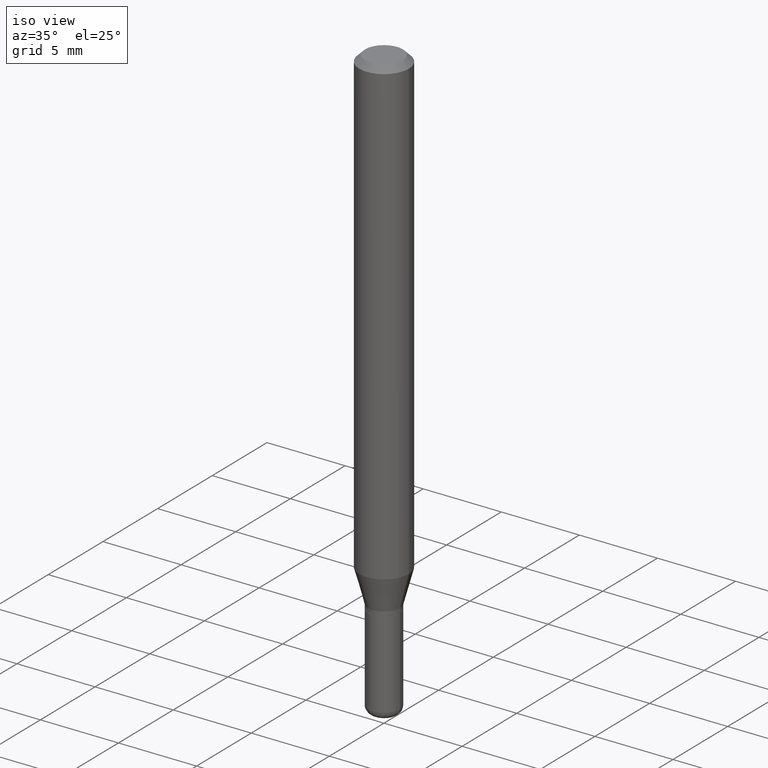
[diagram: clean part render]
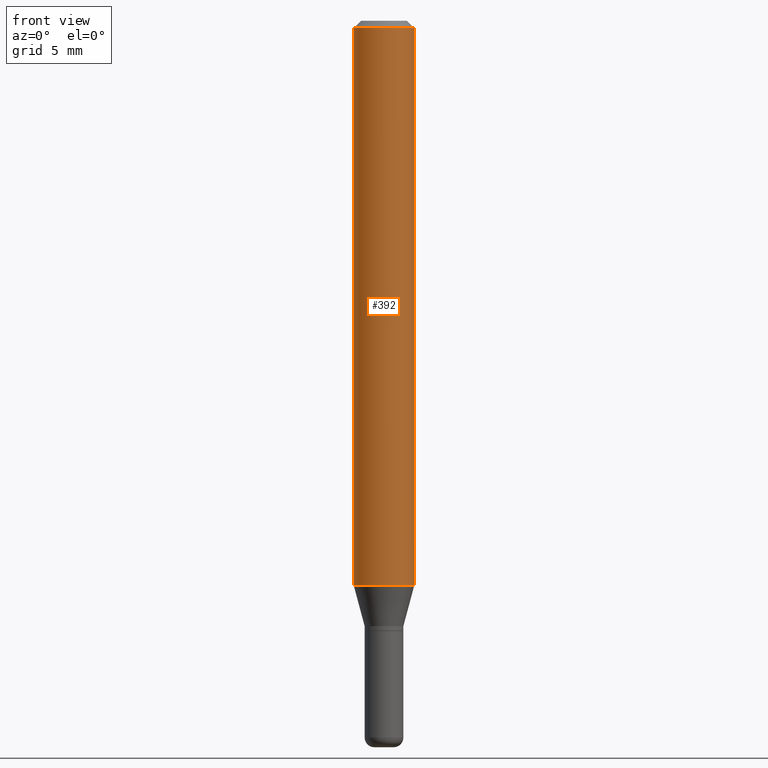
[diagram: tour spotlight — one face highlighted and labeled with its STEP entity id]
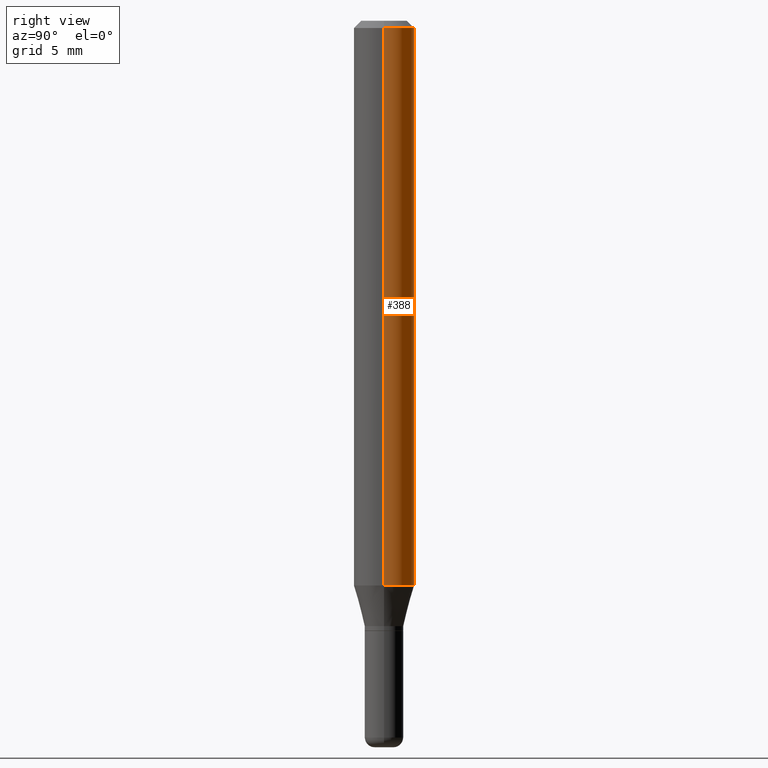
[diagram: tour spotlight — one face highlighted and labeled with its STEP entity id]
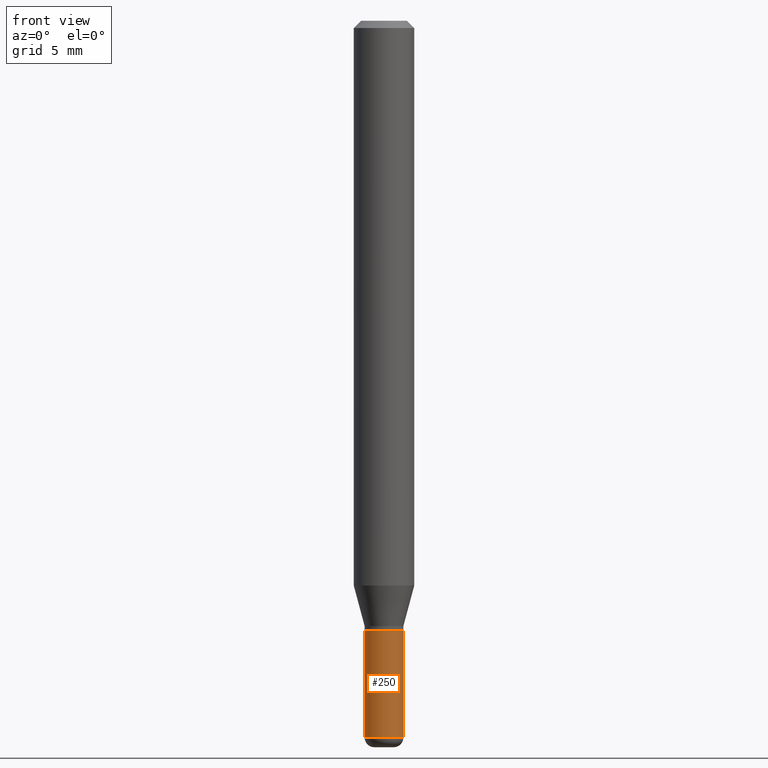
[diagram: tour spotlight — one face highlighted and labeled with its STEP entity id]
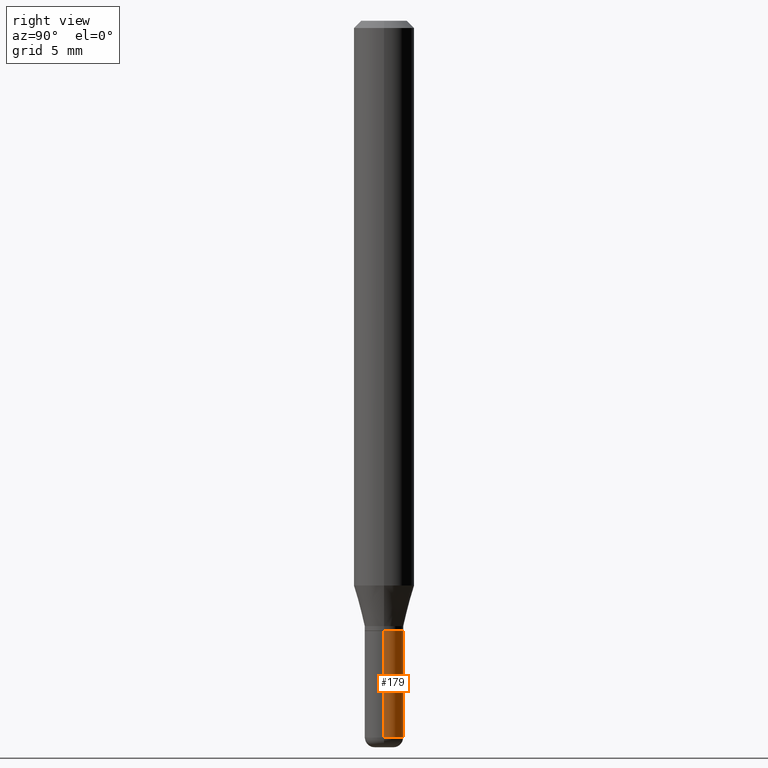
[diagram: tour spotlight — one face highlighted and labeled with its STEP entity id]
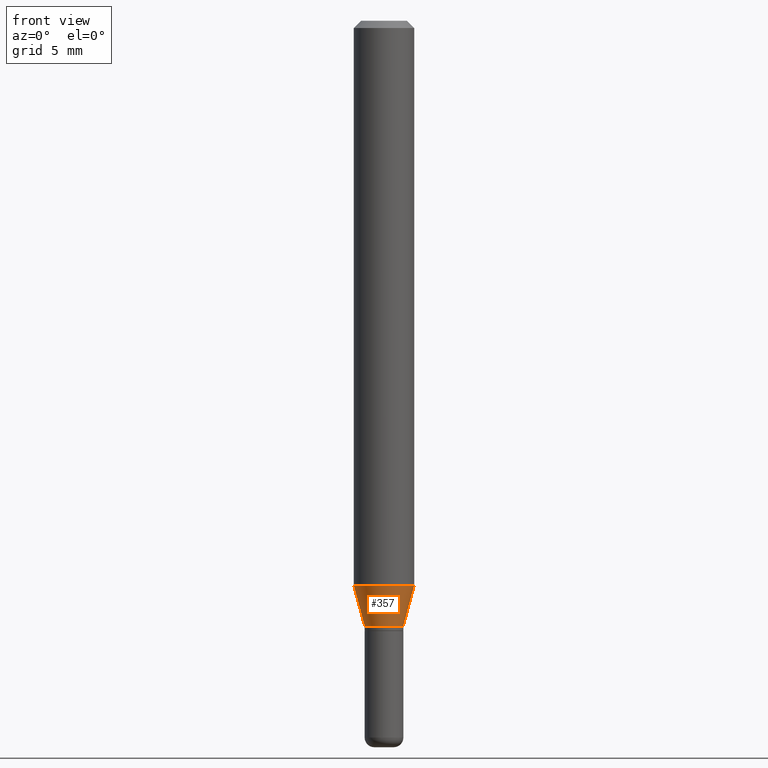
[diagram: tour spotlight — one face highlighted and labeled with its STEP entity id]
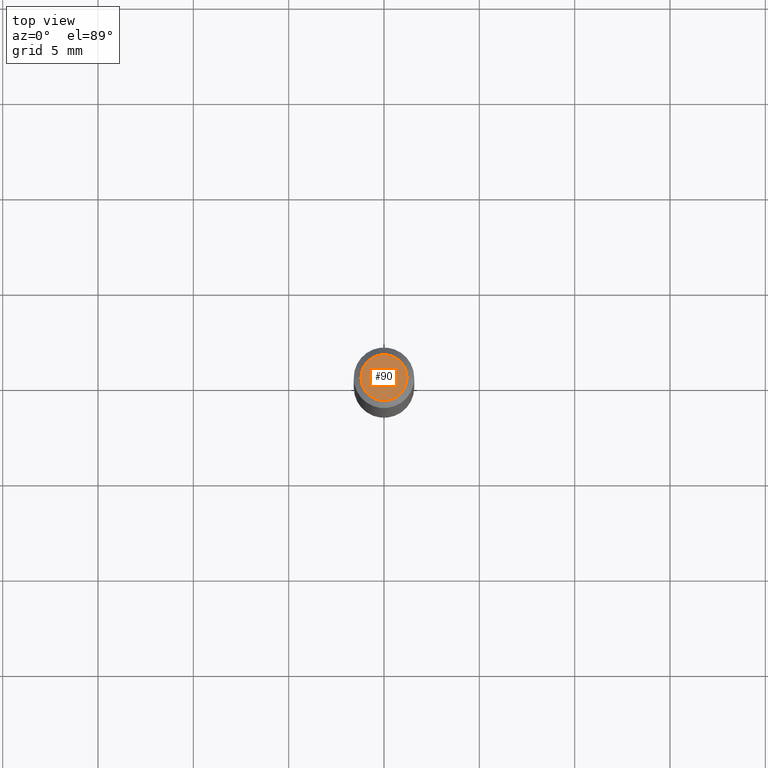
[diagram: tour spotlight — one face highlighted and labeled with its STEP entity id]
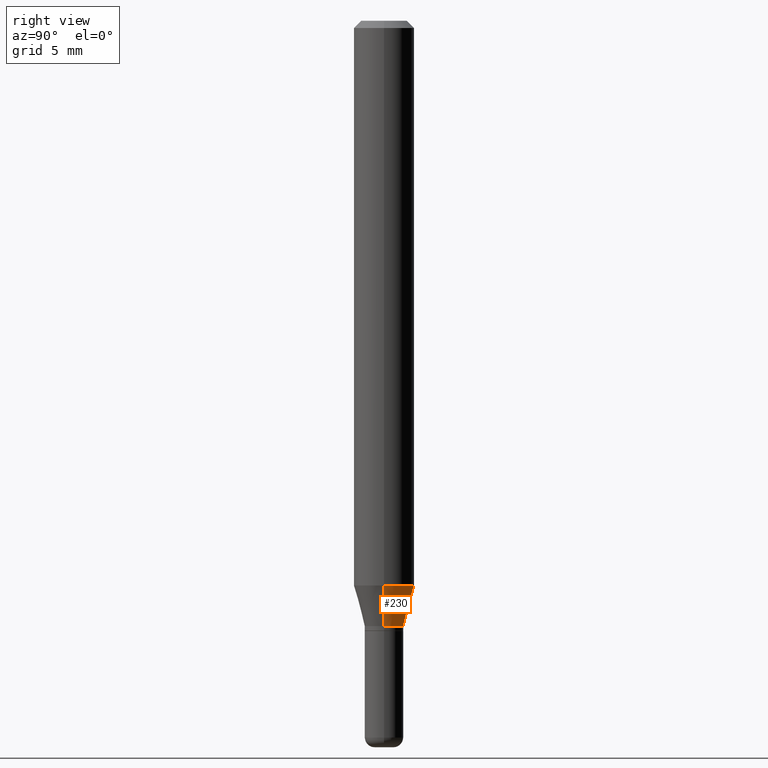
[diagram: tour spotlight — one face highlighted and labeled with its STEP entity id]
A machine part: a face-by-face anatomy tour. The part has 18 B-rep faces; the first image is the clean iso view, then the 7 largest visible faces are spotlighted one at a time (largest first), each with its STEP entity span.

Face 1 — front view, entity #392. In plain terms, the highlighted cylindrical surface (edge-blend (fillet) strip) has radius 1.5875 mm, axis along (-0, 0, 1).
Definition (entity closure, byte-faithful):
#6 = CARTESIAN_POINT ( 'NONE',  ( -0.06250000000000000000, -1.617680897278012693E-15, -0.01499999999999970281 ) ) ;
#10 = VECTOR ( 'NONE', #398, 39.37007874015748143 ) ;
#22 = CARTESIAN_POINT ( 'NONE',  ( 0.000000000000000000, 0.000000000000000000, 0.000000000000000000 ) ) ;
#57 = CARTESIAN_POINT ( 'NONE',  ( 0.06250000000000000000, -4.507603161528897181E-15, -1.166028856829700366 ) ) ;
#107 = CYLINDRICAL_SURFACE ( 'NONE', #170, 0.06250000000000000000 ) ;
#110 = CARTESIAN_POINT ( 'NONE',  ( 0.06250000000000000000, -4.364351673553916694E-16, 3.047610484872459871E-30 ) ) ;
#111 = CARTESIAN_POINT ( 'NONE',  ( 2.851487196488747125E-29, -4.071167994173504722E-15, -1.166028856829700366 ) ) ;
#141 = ORIENTED_EDGE ( 'NONE', *, *, #396, .T. ) ;
#170 = AXIS2_PLACEMENT_3D ( 'NONE', #22, #292, #300 ) ;
#175 = DIRECTION ( 'NONE',  ( -2.445468806185136877E-29, 3.491481338843145188E-15, 1.000000000000000000 ) ) ;
#183 = CARTESIAN_POINT ( 'NONE',  ( 3.668203209277632395E-31, -5.237222008264614861E-17, -0.01499999999999970281 ) ) ;
#204 = AXIS2_PLACEMENT_3D ( 'NONE', #111, #379, #223 ) ;
#213 = VERTEX_POINT ( 'NONE', #6 ) ;
#223 = DIRECTION ( 'NONE',  ( 1.000000000000000000, -6.982962677686262766E-15, 0.000000000000000000 ) ) ;
#232 = ORIENTED_EDGE ( 'NONE', *, *, #271, .T. ) ;
#238 = CIRCLE ( 'NONE', #204, 0.06250000000000000000 ) ;
#240 = AXIS2_PLACEMENT_3D ( 'NONE', #183, #341, #255 ) ;
#245 = LINE ( 'NONE', #110, #10 ) ;
#249 = CIRCLE ( 'NONE', #240, 0.06250000000000000000 ) ;
#252 = CARTESIAN_POINT ( 'NONE',  ( -0.06250000000000000000, -3.627078784323442106E-15, -1.166028856829700366 ) ) ;
#255 = DIRECTION ( 'NONE',  ( 1.000000000000000000, -6.982962677686266711E-15, 0.000000000000000000 ) ) ;
#271 = EDGE_CURVE ( 'NONE', #405, #361, #238, .T. ) ;
#285 = VERTEX_POINT ( 'NONE', #460 ) ;
#292 = DIRECTION ( 'NONE',  ( -2.445468806185136597E-29, 3.491481338843145583E-15, 1.000000000000000000 ) ) ;
#300 = DIRECTION ( 'NONE',  ( 1.000000000000000000, -6.982962677686266711E-15, 4.876176775795935793E-29 ) ) ;
#329 = ORIENTED_EDGE ( 'NONE', *, *, #515, .F. ) ;
#341 = DIRECTION ( 'NONE',  ( -2.445468806185136597E-29, 3.491481338843145583E-15, 1.000000000000000000 ) ) ;
#361 = VERTEX_POINT ( 'NONE', #57 ) ;
#379 = DIRECTION ( 'NONE',  ( -2.445468806185136597E-29, 3.491481338843145583E-15, 1.000000000000000000 ) ) ;
#380 = FACE_OUTER_BOUND ( 'NONE', #477, .T. ) ;
#392 = ADVANCED_FACE ( 'NONE', ( #380 ), #107, .T. ) ;
#396 = EDGE_CURVE ( 'NONE', #361, #285, #245, .T. ) ;
#398 = DIRECTION ( 'NONE',  ( -2.445468806185136877E-29, 3.491481338843145188E-15, 1.000000000000000000 ) ) ;
#399 = ORIENTED_EDGE ( 'NONE', *, *, #494, .F. ) ;
#405 = VERTEX_POINT ( 'NONE', #252 ) ;
#406 = CARTESIAN_POINT ( 'NONE',  ( -0.06250000000000000000, 4.440892098500626162E-16, -3.074334431409316114E-30 ) ) ;
#447 = VECTOR ( 'NONE', #175, 39.37007874015748143 ) ;
#460 = CARTESIAN_POINT ( 'NONE',  ( 0.06250000000000000000, -4.888073874380378612E-16, -0.01499999999999970281 ) ) ;
#477 = EDGE_LOOP ( 'NONE', ( #399, #232, #141, #329 ) ) ;
#494 = EDGE_CURVE ( 'NONE', #405, #213, #502, .T. ) ;
#502 = LINE ( 'NONE', #406, #447 ) ;
#515 = EDGE_CURVE ( 'NONE', #213, #285, #249, .T. ) ;

Face 2 — right view, entity #388. In plain terms, the highlighted cylindrical surface (edge-blend (fillet) strip) has radius 1.5875 mm, axis along (-0, 0, 1).
Definition (entity closure, byte-faithful):
#6 = CARTESIAN_POINT ( 'NONE',  ( -0.06250000000000000000, -1.617680897278012693E-15, -0.01499999999999970281 ) ) ;
#10 = VECTOR ( 'NONE', #398, 39.37007874015748143 ) ;
#15 = DIRECTION ( 'NONE',  ( 1.000000000000000000, -6.982962677686266711E-15, 0.000000000000000000 ) ) ;
#18 = CARTESIAN_POINT ( 'NONE',  ( 0.000000000000000000, 0.000000000000000000, 0.000000000000000000 ) ) ;
#53 = CIRCLE ( 'NONE', #393, 0.06250000000000000000 ) ;
#57 = CARTESIAN_POINT ( 'NONE',  ( 0.06250000000000000000, -4.507603161528897181E-15, -1.166028856829700366 ) ) ;
#68 = DIRECTION ( 'NONE',  ( -2.445468806185136597E-29, 3.491481338843145583E-15, 1.000000000000000000 ) ) ;
#110 = CARTESIAN_POINT ( 'NONE',  ( 0.06250000000000000000, -4.364351673553916694E-16, 3.047610484872459871E-30 ) ) ;
#175 = DIRECTION ( 'NONE',  ( -2.445468806185136877E-29, 3.491481338843145188E-15, 1.000000000000000000 ) ) ;
#178 = ORIENTED_EDGE ( 'NONE', *, *, #311, .T. ) ;
#182 = DIRECTION ( 'NONE',  ( -2.445468806185136597E-29, 3.491481338843145583E-15, 1.000000000000000000 ) ) ;
#185 = DIRECTION ( 'NONE',  ( 1.000000000000000000, -6.982962677686262766E-15, 0.000000000000000000 ) ) ;
#206 = EDGE_LOOP ( 'NONE', ( #178, #439, #315, #366 ) ) ;
#210 = DIRECTION ( 'NONE',  ( -2.445468806185136597E-29, 3.491481338843145583E-15, 1.000000000000000000 ) ) ;
#213 = VERTEX_POINT ( 'NONE', #6 ) ;
#215 = CYLINDRICAL_SURFACE ( 'NONE', #302, 0.06250000000000000000 ) ;
#245 = LINE ( 'NONE', #110, #10 ) ;
#252 = CARTESIAN_POINT ( 'NONE',  ( -0.06250000000000000000, -3.627078784323442106E-15, -1.166028856829700366 ) ) ;
#285 = VERTEX_POINT ( 'NONE', #460 ) ;
#302 = AXIS2_PLACEMENT_3D ( 'NONE', #18, #68, #446 ) ;
#311 = EDGE_CURVE ( 'NONE', #361, #405, #53, .T. ) ;
#315 = ORIENTED_EDGE ( 'NONE', *, *, #503, .F. ) ;
#317 = CIRCLE ( 'NONE', #416, 0.06250000000000000000 ) ;
#332 = CARTESIAN_POINT ( 'NONE',  ( 3.668203209277632395E-31, -5.237222008264614861E-17, -0.01499999999999970281 ) ) ;
#361 = VERTEX_POINT ( 'NONE', #57 ) ;
#366 = ORIENTED_EDGE ( 'NONE', *, *, #396, .F. ) ;
#369 = FACE_OUTER_BOUND ( 'NONE', #206, .T. ) ;
#388 = ADVANCED_FACE ( 'NONE', ( #369 ), #215, .T. ) ;
#393 = AXIS2_PLACEMENT_3D ( 'NONE', #421, #182, #185 ) ;
#396 = EDGE_CURVE ( 'NONE', #361, #285, #245, .T. ) ;
#398 = DIRECTION ( 'NONE',  ( -2.445468806185136877E-29, 3.491481338843145188E-15, 1.000000000000000000 ) ) ;
#405 = VERTEX_POINT ( 'NONE', #252 ) ;
#406 = CARTESIAN_POINT ( 'NONE',  ( -0.06250000000000000000, 4.440892098500626162E-16, -3.074334431409316114E-30 ) ) ;
#416 = AXIS2_PLACEMENT_3D ( 'NONE', #332, #210, #15 ) ;
#421 = CARTESIAN_POINT ( 'NONE',  ( 2.851487196488747125E-29, -4.071167994173504722E-15, -1.166028856829700366 ) ) ;
#439 = ORIENTED_EDGE ( 'NONE', *, *, #494, .T. ) ;
#446 = DIRECTION ( 'NONE',  ( 1.000000000000000000, -6.982962677686266711E-15, 4.876176775795935793E-29 ) ) ;
#447 = VECTOR ( 'NONE', #175, 39.37007874015748143 ) ;
#460 = CARTESIAN_POINT ( 'NONE',  ( 0.06250000000000000000, -4.888073874380378612E-16, -0.01499999999999970281 ) ) ;
#494 = EDGE_CURVE ( 'NONE', #405, #213, #502, .T. ) ;
#502 = LINE ( 'NONE', #406, #447 ) ;
#503 = EDGE_CURVE ( 'NONE', #285, #213, #317, .T. ) ;

Face 3 — front view, entity #250. In plain terms, the highlighted cylindrical surface (edge-blend (fillet) strip) has radius 1.016 mm, axis along (-0, 0, 1).
Definition (entity closure, byte-faithful):
#35 = CIRCLE ( 'NONE', #146, 0.04000000000000003553 ) ;
#38 = CARTESIAN_POINT ( 'NONE',  ( 3.619293833154002365E-29, -5.167392381487854879E-15, -1.479999999999999982 ) ) ;
#41 = DIRECTION ( 'NONE',  ( -2.445468806185136877E-29, 3.491481338843145188E-15, 1.000000000000000000 ) ) ;
#77 = ORIENTED_EDGE ( 'NONE', *, *, #331, .T. ) ;
#94 = VECTOR ( 'NONE', #256, 39.37007874015748143 ) ;
#99 = EDGE_CURVE ( 'NONE', #181, #497, #35, .T. ) ;
#100 = LINE ( 'NONE', #235, #484 ) ;
#113 = CARTESIAN_POINT ( 'NONE',  ( -0.04000000000000001471, 2.842170943040401789E-16, -1.967574036101963210E-30 ) ) ;
#115 = CARTESIAN_POINT ( 'NONE',  ( 0.000000000000000000, 0.000000000000000000, 0.000000000000000000 ) ) ;
#124 = DIRECTION ( 'NONE',  ( -2.445468806185136597E-29, 3.491481338843145583E-15, 1.000000000000000000 ) ) ;
#134 = AXIS2_PLACEMENT_3D ( 'NONE', #115, #214, #147 ) ;
#146 = AXIS2_PLACEMENT_3D ( 'NONE', #38, #124, #471 ) ;
#147 = DIRECTION ( 'NONE',  ( 1.000000000000000000, -6.982962677686266711E-15, 4.876176775795936914E-29 ) ) ;
#165 = VERTEX_POINT ( 'NONE', #418 ) ;
#173 = LINE ( 'NONE', #113, #94 ) ;
#181 = VERTEX_POINT ( 'NONE', #407 ) ;
#190 = EDGE_LOOP ( 'NONE', ( #276, #490, #77, #243 ) ) ;
#198 = EDGE_CURVE ( 'NONE', #165, #479, #436, .T. ) ;
#214 = DIRECTION ( 'NONE',  ( -2.445468806185136597E-29, 3.491481338843145583E-15, 1.000000000000000000 ) ) ;
#220 = CARTESIAN_POINT ( 'NONE',  ( 0.04000000000000003553, -5.446710888595306494E-15, -1.479999999999999982 ) ) ;
#224 = FACE_OUTER_BOUND ( 'NONE', #190, .T. ) ;
#235 = CARTESIAN_POINT ( 'NONE',  ( 0.04000000000000001471, -2.793185071074507769E-16, 1.950470710318375438E-30 ) ) ;
#243 = ORIENTED_EDGE ( 'NONE', *, *, #198, .F. ) ;
#250 = ADVANCED_FACE ( 'NONE', ( #224 ), #381, .T. ) ;
#256 = DIRECTION ( 'NONE',  ( -2.445468806185136877E-29, 3.491481338843145188E-15, 1.000000000000000000 ) ) ;
#269 = AXIS2_PLACEMENT_3D ( 'NONE', #495, #291, #450 ) ;
#276 = ORIENTED_EDGE ( 'NONE', *, *, #354, .F. ) ;
#291 = DIRECTION ( 'NONE',  ( -2.445468806185136597E-29, 3.491481338843145583E-15, 1.000000000000000000 ) ) ;
#331 = EDGE_CURVE ( 'NONE', #497, #479, #100, .T. ) ;
#354 = EDGE_CURVE ( 'NONE', #181, #165, #173, .T. ) ;
#381 = CYLINDRICAL_SURFACE ( 'NONE', #134, 0.04000000000000001471 ) ;
#407 = CARTESIAN_POINT ( 'NONE',  ( -0.04000000000000003553, -4.499112339911069567E-15, -1.479999999999999982 ) ) ;
#418 = CARTESIAN_POINT ( 'NONE',  ( -0.04000000000000000083, -4.499112339911069567E-15, -1.260000000000000231 ) ) ;
#436 = CIRCLE ( 'NONE', #269, 0.04000000000000000083 ) ;
#450 = DIRECTION ( 'NONE',  ( 1.000000000000000000, -6.982962677686259611E-15, 0.000000000000000000 ) ) ;
#471 = DIRECTION ( 'NONE',  ( 1.000000000000000000, -6.982962677686277755E-15, 0.000000000000000000 ) ) ;
#479 = VERTEX_POINT ( 'NONE', #492 ) ;
#484 = VECTOR ( 'NONE', #41, 39.37007874015748143 ) ;
#490 = ORIENTED_EDGE ( 'NONE', *, *, #99, .T. ) ;
#492 = CARTESIAN_POINT ( 'NONE',  ( 0.04000000000000000083, -4.678584994049814947E-15, -1.260000000000000231 ) ) ;
#495 = CARTESIAN_POINT ( 'NONE',  ( 3.081290695793272291E-29, -4.399266486942364120E-15, -1.260000000000000231 ) ) ;
#497 = VERTEX_POINT ( 'NONE', #220 ) ;

Face 4 — right view, entity #179. In plain terms, the highlighted cylindrical surface (edge-blend (fillet) strip) has radius 1.016 mm, axis along (-0, 0, 1).
Definition (entity closure, byte-faithful):
#2 = CIRCLE ( 'NONE', #28, 0.04000000000000000083 ) ;
#28 = AXIS2_PLACEMENT_3D ( 'NONE', #121, #267, #455 ) ;
#32 = EDGE_LOOP ( 'NONE', ( #278, #195, #351, #203 ) ) ;
#41 = DIRECTION ( 'NONE',  ( -2.445468806185136877E-29, 3.491481338843145188E-15, 1.000000000000000000 ) ) ;
#43 = CIRCLE ( 'NONE', #458, 0.04000000000000003553 ) ;
#58 = CARTESIAN_POINT ( 'NONE',  ( 0.000000000000000000, 0.000000000000000000, 0.000000000000000000 ) ) ;
#94 = VECTOR ( 'NONE', #256, 39.37007874015748143 ) ;
#100 = LINE ( 'NONE', #235, #484 ) ;
#113 = CARTESIAN_POINT ( 'NONE',  ( -0.04000000000000001471, 2.842170943040401789E-16, -1.967574036101963210E-30 ) ) ;
#119 = DIRECTION ( 'NONE',  ( 1.000000000000000000, -6.982962677686277755E-15, 0.000000000000000000 ) ) ;
#121 = CARTESIAN_POINT ( 'NONE',  ( 3.081290695793272291E-29, -4.399266486942364120E-15, -1.260000000000000231 ) ) ;
#133 = DIRECTION ( 'NONE',  ( 1.000000000000000000, -6.982962677686266711E-15, 4.876176775795936914E-29 ) ) ;
#137 = DIRECTION ( 'NONE',  ( -2.445468806185136597E-29, 3.491481338843145583E-15, 1.000000000000000000 ) ) ;
#154 = EDGE_CURVE ( 'NONE', #497, #181, #43, .T. ) ;
#165 = VERTEX_POINT ( 'NONE', #418 ) ;
#173 = LINE ( 'NONE', #113, #94 ) ;
#179 = ADVANCED_FACE ( 'NONE', ( #359 ), #401, .T. ) ;
#181 = VERTEX_POINT ( 'NONE', #407 ) ;
#195 = ORIENTED_EDGE ( 'NONE', *, *, #354, .T. ) ;
#203 = ORIENTED_EDGE ( 'NONE', *, *, #331, .F. ) ;
#220 = CARTESIAN_POINT ( 'NONE',  ( 0.04000000000000003553, -5.446710888595306494E-15, -1.479999999999999982 ) ) ;
#235 = CARTESIAN_POINT ( 'NONE',  ( 0.04000000000000001471, -2.793185071074507769E-16, 1.950470710318375438E-30 ) ) ;
#239 = EDGE_CURVE ( 'NONE', #479, #165, #2, .T. ) ;
#256 = DIRECTION ( 'NONE',  ( -2.445468806185136877E-29, 3.491481338843145188E-15, 1.000000000000000000 ) ) ;
#261 = AXIS2_PLACEMENT_3D ( 'NONE', #58, #137, #133 ) ;
#267 = DIRECTION ( 'NONE',  ( -2.445468806185136597E-29, 3.491481338843145583E-15, 1.000000000000000000 ) ) ;
#278 = ORIENTED_EDGE ( 'NONE', *, *, #154, .T. ) ;
#331 = EDGE_CURVE ( 'NONE', #497, #479, #100, .T. ) ;
#351 = ORIENTED_EDGE ( 'NONE', *, *, #239, .F. ) ;
#354 = EDGE_CURVE ( 'NONE', #181, #165, #173, .T. ) ;
#359 = FACE_OUTER_BOUND ( 'NONE', #32, .T. ) ;
#401 = CYLINDRICAL_SURFACE ( 'NONE', #261, 0.04000000000000001471 ) ;
#407 = CARTESIAN_POINT ( 'NONE',  ( -0.04000000000000003553, -4.499112339911069567E-15, -1.479999999999999982 ) ) ;
#418 = CARTESIAN_POINT ( 'NONE',  ( -0.04000000000000000083, -4.499112339911069567E-15, -1.260000000000000231 ) ) ;
#455 = DIRECTION ( 'NONE',  ( 1.000000000000000000, -6.982962677686259611E-15, 0.000000000000000000 ) ) ;
#458 = AXIS2_PLACEMENT_3D ( 'NONE', #467, #463, #119 ) ;
#463 = DIRECTION ( 'NONE',  ( -2.445468806185136597E-29, 3.491481338843145583E-15, 1.000000000000000000 ) ) ;
#467 = CARTESIAN_POINT ( 'NONE',  ( 3.619293833154002365E-29, -5.167392381487854879E-15, -1.479999999999999982 ) ) ;
#479 = VERTEX_POINT ( 'NONE', #492 ) ;
#484 = VECTOR ( 'NONE', #41, 39.37007874015748143 ) ;
#492 = CARTESIAN_POINT ( 'NONE',  ( 0.04000000000000000083, -4.678584994049814947E-15, -1.260000000000000231 ) ) ;
#497 = VERTEX_POINT ( 'NONE', #220 ) ;

Face 5 — front view, entity #357. In plain terms, the highlighted conical surface has half-angle 15 deg.
Definition (entity closure, byte-faithful):
#5 = ORIENTED_EDGE ( 'NONE', *, *, #271, .F. ) ;
#12 = ORIENTED_EDGE ( 'NONE', *, *, #191, .F. ) ;
#14 = EDGE_LOOP ( 'NONE', ( #12, #440, #274, #5 ) ) ;
#16 = CARTESIAN_POINT ( 'NONE',  ( -0.04000000000000000083, -4.080134579249892145E-15, -1.250000000000000000 ) ) ;
#25 = DIRECTION ( 'NONE',  ( 1.000000000000000000, -6.982962677686271444E-15, 0.000000000000000000 ) ) ;
#57 = CARTESIAN_POINT ( 'NONE',  ( 0.06250000000000000000, -4.507603161528897181E-15, -1.166028856829700366 ) ) ;
#62 = FACE_OUTER_BOUND ( 'NONE', #14, .T. ) ;
#63 = VERTEX_POINT ( 'NONE', #429 ) ;
#103 = DIRECTION ( 'NONE',  ( -2.445468806185136597E-29, 3.491481338843145583E-15, 1.000000000000000000 ) ) ;
#111 = CARTESIAN_POINT ( 'NONE',  ( 2.851487196488747125E-29, -4.071167994173504722E-15, -1.166028856829700366 ) ) ;
#127 = CONICAL_SURFACE ( 'NONE', #279, 0.04000000000000000083, 0.2617993877991495189 ) ;
#145 = CARTESIAN_POINT ( 'NONE',  ( 3.056836007731421306E-29, -4.364351673553932471E-15, -1.250000000000000000 ) ) ;
#148 = DIRECTION ( 'NONE',  ( -2.445468806185136597E-29, 3.491481338843145583E-15, 1.000000000000000000 ) ) ;
#177 = DIRECTION ( 'NONE',  ( -0.2588190451025207950, 5.211531920934546309E-15, 0.9659258262890682012 ) ) ;
#187 = CIRCLE ( 'NONE', #275, 0.04000000000000000083 ) ;
#188 = CARTESIAN_POINT ( 'NONE',  ( -0.04000000000000000083, -3.853606681786667125E-15, -1.250000000000000000 ) ) ;
#191 = EDGE_CURVE ( 'NONE', #294, #405, #211, .T. ) ;
#196 = VECTOR ( 'NONE', #411, 39.37007874015748854 ) ;
#204 = AXIS2_PLACEMENT_3D ( 'NONE', #111, #379, #223 ) ;
#211 = LINE ( 'NONE', #16, #225 ) ;
#223 = DIRECTION ( 'NONE',  ( 1.000000000000000000, -6.982962677686262766E-15, 0.000000000000000000 ) ) ;
#225 = VECTOR ( 'NONE', #177, 39.37007874015748854 ) ;
#238 = CIRCLE ( 'NONE', #204, 0.06250000000000000000 ) ;
#252 = CARTESIAN_POINT ( 'NONE',  ( -0.06250000000000000000, -3.627078784323442106E-15, -1.166028856829700366 ) ) ;
#271 = EDGE_CURVE ( 'NONE', #405, #361, #238, .T. ) ;
#274 = ORIENTED_EDGE ( 'NONE', *, *, #304, .T. ) ;
#275 = AXIS2_PLACEMENT_3D ( 'NONE', #145, #148, #25 ) ;
#279 = AXIS2_PLACEMENT_3D ( 'NONE', #371, #103, #414 ) ;
#294 = VERTEX_POINT ( 'NONE', #188 ) ;
#304 = EDGE_CURVE ( 'NONE', #63, #361, #383, .T. ) ;
#357 = ADVANCED_FACE ( 'NONE', ( #62 ), #127, .T. ) ;
#361 = VERTEX_POINT ( 'NONE', #57 ) ;
#371 = CARTESIAN_POINT ( 'NONE',  ( 3.056836007731421306E-29, -4.364351673553932471E-15, -1.250000000000000000 ) ) ;
#379 = DIRECTION ( 'NONE',  ( -2.445468806185136597E-29, 3.491481338843145583E-15, 1.000000000000000000 ) ) ;
#383 = LINE ( 'NONE', #452, #196 ) ;
#405 = VERTEX_POINT ( 'NONE', #252 ) ;
#411 = DIRECTION ( 'NONE',  ( 0.2588190451025207950, 1.565188264969625912E-15, 0.9659258262890682012 ) ) ;
#414 = DIRECTION ( 'NONE',  ( 1.000000000000000000, -6.982962677686271444E-15, 0.000000000000000000 ) ) ;
#429 = CARTESIAN_POINT ( 'NONE',  ( 0.04000000000000000083, -4.643670180661383298E-15, -1.250000000000000000 ) ) ;
#440 = ORIENTED_EDGE ( 'NONE', *, *, #513, .T. ) ;
#452 = CARTESIAN_POINT ( 'NONE',  ( 0.04000000000000000083, -4.643670180661383298E-15, -1.250000000000000000 ) ) ;
#513 = EDGE_CURVE ( 'NONE', #294, #63, #187, .T. ) ;

Face 6 — top view, entity #90. In plain terms, the highlighted planar face has unit normal (0, -0, -1).
Definition (entity closure, byte-faithful):
#20 = DIRECTION ( 'NONE',  ( 1.000000000000000000, -6.982962677686266711E-15, 4.852736867747365086E-29 ) ) ;
#29 = AXIS2_PLACEMENT_3D ( 'NONE', #456, #290, #20 ) ;
#69 = EDGE_LOOP ( 'NONE', ( #327, #459 ) ) ;
#81 = CIRCLE ( 'NONE', #29, 0.04750000000000000749 ) ;
#90 = ADVANCED_FACE ( 'NONE', ( #312 ), #391, .F. ) ;
#158 = CARTESIAN_POINT ( 'NONE',  ( 3.316907271900976589E-16, 0.04750000000000000749, -2.925296391183627249E-17 ) ) ;
#201 = CARTESIAN_POINT ( 'NONE',  ( -6.680649051745406845E-45, 9.538196290434862081E-31, 2.731847993664263218E-16 ) ) ;
#216 = AXIS2_PLACEMENT_3D ( 'NONE', #201, #360, #482 ) ;
#231 = DIRECTION ( 'NONE',  ( 2.438088387897960049E-29, -3.491481338843145188E-15, -1.000000000000000000 ) ) ;
#259 = CARTESIAN_POINT ( 'NONE',  ( 0.04750000000000000749, -4.035134999187568762E-16, 2.731847993664288856E-16 ) ) ;
#290 = DIRECTION ( 'NONE',  ( -2.445468806185136597E-29, 3.491481338843145583E-15, 1.000000000000000000 ) ) ;
#299 = CARTESIAN_POINT ( 'NONE',  ( -0.04750000000000000749, 3.578768372314221353E-16, 2.731847993664239060E-16 ) ) ;
#308 = CIRCLE ( 'NONE', #216, 0.04750000000000000749 ) ;
#310 = DIRECTION ( 'NONE',  ( -1.000000000000000000, 6.982962677686265922E-15, -4.876176775795935793E-29 ) ) ;
#312 = FACE_OUTER_BOUND ( 'NONE', #69, .T. ) ;
#327 = ORIENTED_EDGE ( 'NONE', *, *, #491, .T. ) ;
#345 = EDGE_CURVE ( 'NONE', #378, #500, #308, .T. ) ;
#360 = DIRECTION ( 'NONE',  ( -2.445468806185136597E-29, 3.491481338843145583E-15, 1.000000000000000000 ) ) ;
#378 = VERTEX_POINT ( 'NONE', #259 ) ;
#391 = PLANE ( 'NONE',  #430 ) ;
#430 = AXIS2_PLACEMENT_3D ( 'NONE', #158, #231, #310 ) ;
#456 = CARTESIAN_POINT ( 'NONE',  ( -6.680649051745406845E-45, 9.538196290434862081E-31, 2.731847993664263218E-16 ) ) ;
#459 = ORIENTED_EDGE ( 'NONE', *, *, #345, .T. ) ;
#482 = DIRECTION ( 'NONE',  ( 1.000000000000000000, -6.982962677686266711E-15, 4.852736867747365086E-29 ) ) ;
#491 = EDGE_CURVE ( 'NONE', #500, #378, #81, .T. ) ;
#500 = VERTEX_POINT ( 'NONE', #299 ) ;

Face 7 — right view, entity #230. In plain terms, the highlighted conical surface has half-angle 15 deg.
Definition (entity closure, byte-faithful):
#16 = CARTESIAN_POINT ( 'NONE',  ( -0.04000000000000000083, -4.080134579249892145E-15, -1.250000000000000000 ) ) ;
#53 = CIRCLE ( 'NONE', #393, 0.06250000000000000000 ) ;
#57 = CARTESIAN_POINT ( 'NONE',  ( 0.06250000000000000000, -4.507603161528897181E-15, -1.166028856829700366 ) ) ;
#60 = ORIENTED_EDGE ( 'NONE', *, *, #221, .T. ) ;
#61 = DIRECTION ( 'NONE',  ( 1.000000000000000000, -6.982962677686271444E-15, 0.000000000000000000 ) ) ;
#63 = VERTEX_POINT ( 'NONE', #429 ) ;
#108 = ORIENTED_EDGE ( 'NONE', *, *, #191, .T. ) ;
#117 = CARTESIAN_POINT ( 'NONE',  ( 3.056836007731421306E-29, -4.364351673553932471E-15, -1.250000000000000000 ) ) ;
#177 = DIRECTION ( 'NONE',  ( -0.2588190451025207950, 5.211531920934546309E-15, 0.9659258262890682012 ) ) ;
#182 = DIRECTION ( 'NONE',  ( -2.445468806185136597E-29, 3.491481338843145583E-15, 1.000000000000000000 ) ) ;
#185 = DIRECTION ( 'NONE',  ( 1.000000000000000000, -6.982962677686262766E-15, 0.000000000000000000 ) ) ;
#188 = CARTESIAN_POINT ( 'NONE',  ( -0.04000000000000000083, -3.853606681786667125E-15, -1.250000000000000000 ) ) ;
#191 = EDGE_CURVE ( 'NONE', #294, #405, #211, .T. ) ;
#196 = VECTOR ( 'NONE', #411, 39.37007874015748854 ) ;
#211 = LINE ( 'NONE', #16, #225 ) ;
#219 = DIRECTION ( 'NONE',  ( -2.445468806185136597E-29, 3.491481338843145583E-15, 1.000000000000000000 ) ) ;
#221 = EDGE_CURVE ( 'NONE', #63, #294, #376, .T. ) ;
#225 = VECTOR ( 'NONE', #177, 39.37007874015748854 ) ;
#230 = ADVANCED_FACE ( 'NONE', ( #344 ), #445, .T. ) ;
#234 = ORIENTED_EDGE ( 'NONE', *, *, #311, .F. ) ;
#252 = CARTESIAN_POINT ( 'NONE',  ( -0.06250000000000000000, -3.627078784323442106E-15, -1.166028856829700366 ) ) ;
#287 = AXIS2_PLACEMENT_3D ( 'NONE', #117, #512, #61 ) ;
#294 = VERTEX_POINT ( 'NONE', #188 ) ;
#297 = EDGE_LOOP ( 'NONE', ( #60, #108, #234, #347 ) ) ;
#304 = EDGE_CURVE ( 'NONE', #63, #361, #383, .T. ) ;
#311 = EDGE_CURVE ( 'NONE', #361, #405, #53, .T. ) ;
#340 = CARTESIAN_POINT ( 'NONE',  ( 3.056836007731421306E-29, -4.364351673553932471E-15, -1.250000000000000000 ) ) ;
#344 = FACE_OUTER_BOUND ( 'NONE', #297, .T. ) ;
#347 = ORIENTED_EDGE ( 'NONE', *, *, #304, .F. ) ;
#361 = VERTEX_POINT ( 'NONE', #57 ) ;
#364 = AXIS2_PLACEMENT_3D ( 'NONE', #340, #219, #466 ) ;
#376 = CIRCLE ( 'NONE', #364, 0.04000000000000000083 ) ;
#383 = LINE ( 'NONE', #452, #196 ) ;
#393 = AXIS2_PLACEMENT_3D ( 'NONE', #421, #182, #185 ) ;
#405 = VERTEX_POINT ( 'NONE', #252 ) ;
#411 = DIRECTION ( 'NONE',  ( 0.2588190451025207950, 1.565188264969625912E-15, 0.9659258262890682012 ) ) ;
#421 = CARTESIAN_POINT ( 'NONE',  ( 2.851487196488747125E-29, -4.071167994173504722E-15, -1.166028856829700366 ) ) ;
#429 = CARTESIAN_POINT ( 'NONE',  ( 0.04000000000000000083, -4.643670180661383298E-15, -1.250000000000000000 ) ) ;
#445 = CONICAL_SURFACE ( 'NONE', #287, 0.04000000000000000083, 0.2617993877991495189 ) ;
#452 = CARTESIAN_POINT ( 'NONE',  ( 0.04000000000000000083, -4.643670180661383298E-15, -1.250000000000000000 ) ) ;
#466 = DIRECTION ( 'NONE',  ( 1.000000000000000000, -6.982962677686271444E-15, 0.000000000000000000 ) ) ;
#512 = DIRECTION ( 'NONE',  ( -2.445468806185136597E-29, 3.491481338843145583E-15, 1.000000000000000000 ) ) ;